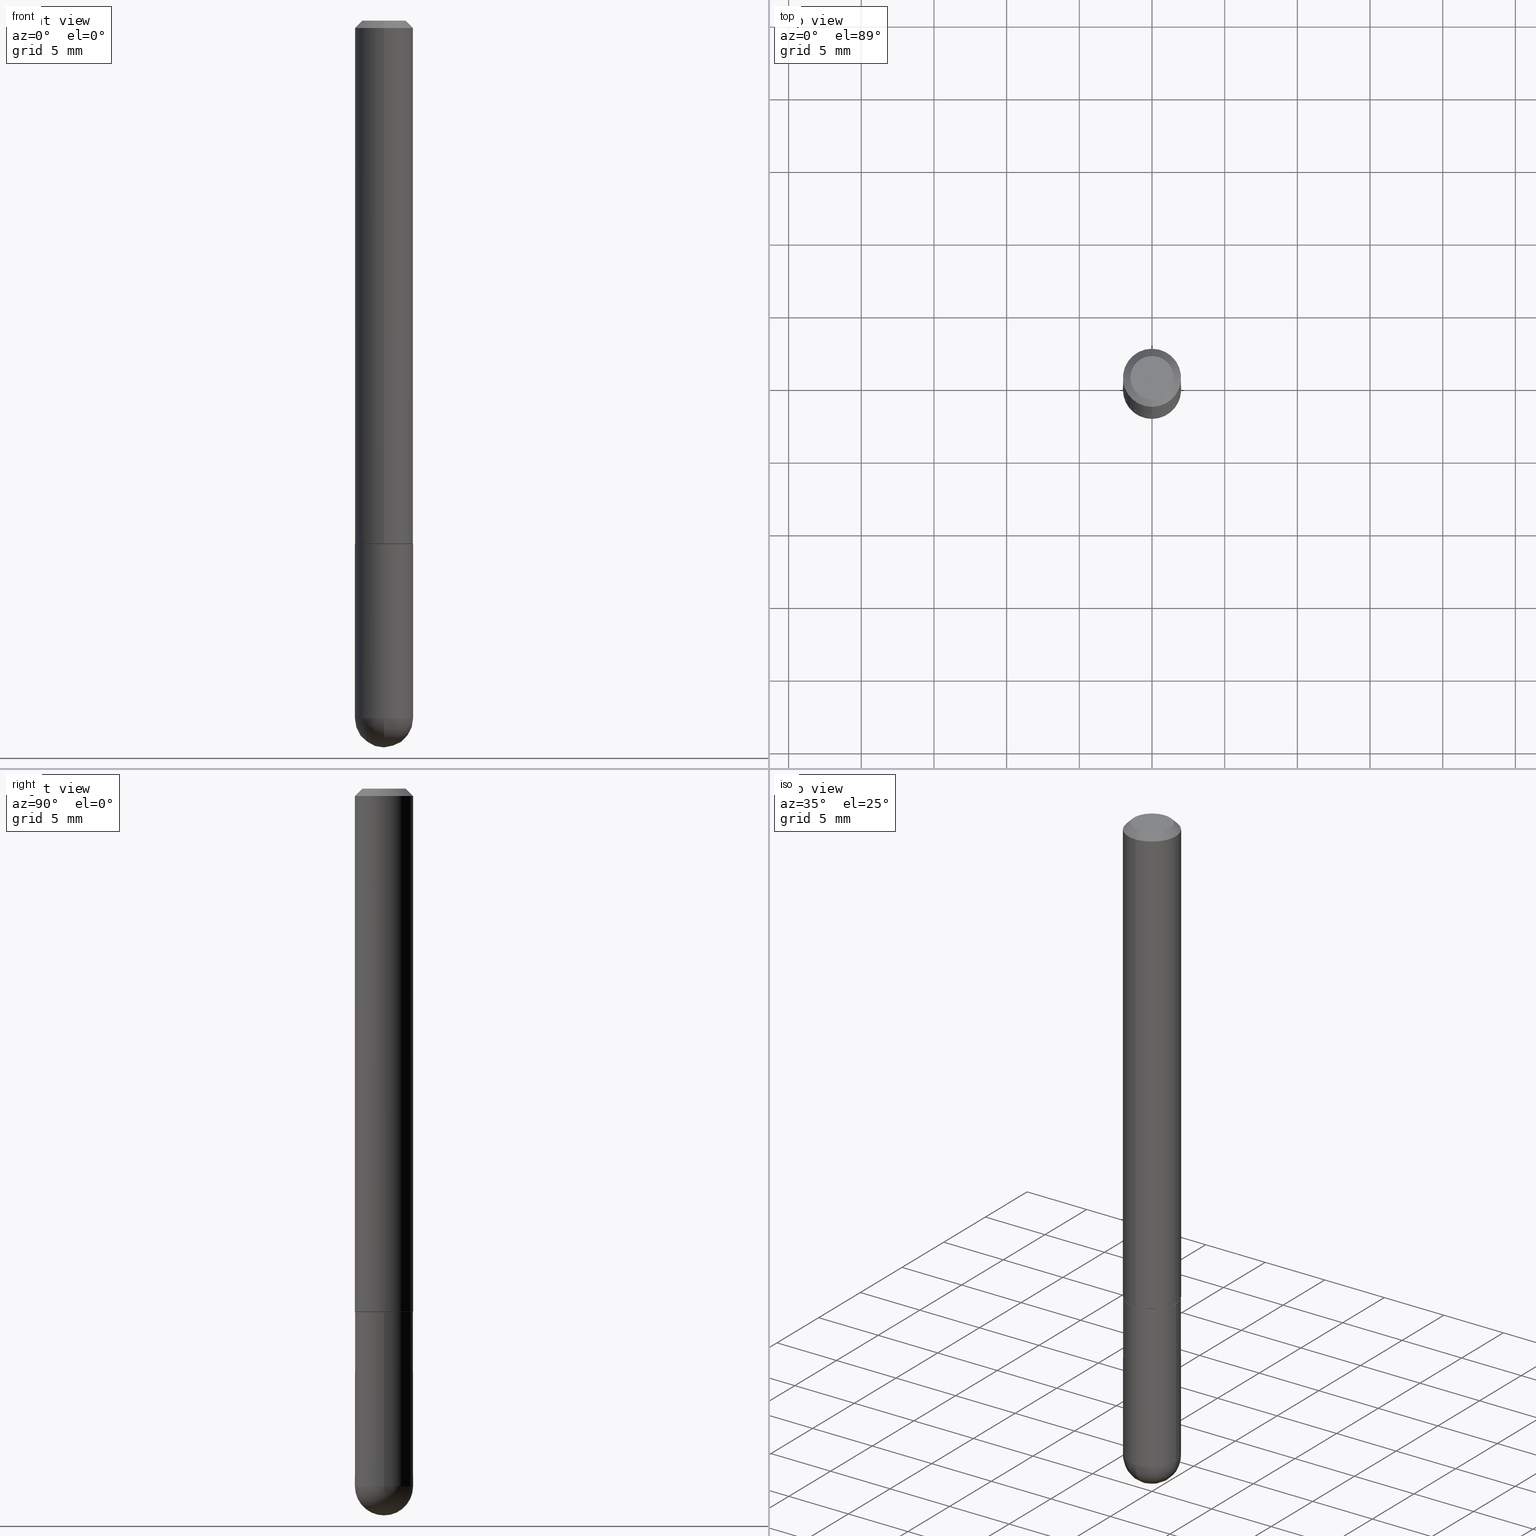
[diagram: canonical four-view strip — front | top / right | iso, engineering-drawing reading convention]
A machine part, canonical four-view strip (front | top / right | iso — engineering-drawing reading convention). The complete STEP part file that produces these views, byte-faithful:
ISO-10303-21;
HEADER;
FILE_DESCRIPTION (( 'STEP AP203' ),
    '1' );
FILE_NAME ('48741.STEP',
    '2024-04-10T12:00:30',
    ( '' ),
    ( '' ),
    'SwSTEP 2.0',
    'SolidWorks 2023',
    '' );
FILE_SCHEMA (( 'CONFIG_CONTROL_DESIGN' ));
ENDSEC;

DATA;
#1 = FACE_OUTER_BOUND ( 'NONE', #351, .T. ) ;
#2 = APPROVAL_ROLE ( '' ) ;
#3 = EDGE_CURVE ( 'NONE', #172, #384, #390, .T. ) ;
#4 = ORIENTED_EDGE ( 'NONE', *, *, #285, .T. ) ;
#5 = CARTESIAN_POINT ( 'NONE',  ( 4.621324676488362597E-29, -6.598026860078835823E-15, -1.889750000000000263 ) ) ;
#6 = VECTOR ( 'NONE', #71, 39.37007874015748143 ) ;
#7 = EDGE_LOOP ( 'NONE', ( #60, #358, #212, #327, #181 ) ) ;
#8 = PERSON_AND_ORGANIZATION_ROLE ( 'creator' ) ;
#9 = COORDINATED_UNIVERSAL_TIME_OFFSET ( 5, 0, .BEHIND. ) ;
#10 = DIRECTION ( 'NONE',  ( 6.982962677686265922E-15, 1.000000000000000000, -3.469013325287941460E-15 ) ) ;
#11 = DIRECTION ( 'NONE',  ( -6.982962677686265922E-15, -1.000000000000000000, 3.469013325287954477E-15 ) ) ;
#12 = LINE ( 'NONE', #347, #412 ) ;
#13 = CALENDAR_DATE ( 2024, 10, 4 ) ;
#14 = AXIS2_PLACEMENT_3D ( 'NONE', #50, #193, #20 ) ;
#15 = DIRECTION ( 'NONE',  ( -6.982962677686265133E-15, -1.000000000000000000, 3.513630860018345064E-15 ) ) ;
#16 = CARTESIAN_POINT ( 'NONE',  ( 3.462933611428052952E-29, -4.945821139196164307E-15, -1.416299999999999892 ) ) ;
#17 = EDGE_CURVE ( 'NONE', #59, #384, #411, .T. ) ;
#18 = LINE ( 'NONE', #344, #164 ) ;
#19 = FACE_OUTER_BOUND ( 'NONE', #171, .T. ) ;
#20 = DIRECTION ( 'NONE',  ( -6.982962677686265133E-15, -1.000000000000000000, 3.492071693282613575E-15 ) ) ;
#21 = DIRECTION ( 'NONE',  ( 2.445056563883395622E-29, -3.492071693282613575E-15, -1.000000000000000000 ) ) ;
#22 = AXIS2_PLACEMENT_3D ( 'NONE', #213, #336, #39 ) ;
#23 = CONICAL_SURFACE ( 'NONE', #209, 0.07774999999999999967, 0.7853981633975080090 ) ;
#24 = DIRECTION ( 'NONE',  ( 6.982962677686266711E-15, 1.000000000000000000, 0.000000000000000000 ) ) ;
#25 = ORIENTED_EDGE ( 'NONE', *, *, #330, .F. ) ;
#26 = CARTESIAN_POINT ( 'NONE',  ( -4.716592373467918680E-16, -0.05874999999999983707, 3.759343949076881619E-16 ) ) ;
#27 = AXIS2_PLACEMENT_3D ( 'NONE', #353, #240, #268 ) ;
#28 = CC_DESIGN_SECURITY_CLASSIFICATION ( #210, ( #340 ) ) ;
#29 = VERTEX_POINT ( 'NONE', #366 ) ;
#30 = APPROVAL ( #348, 'UNSPECIFIED' ) ;
#31 = ORIENTED_EDGE ( 'NONE', *, *, #3, .F. ) ;
#32 = VERTEX_POINT ( 'NONE', #278 ) ;
#33 = DIRECTION ( 'NONE',  ( 0.000000000000000000, 0.000000000000000000, 1.000000000000000000 ) ) ;
#34 = EDGE_CURVE ( 'NONE', #297, #45, #339, .T. ) ;
#35 = DIRECTION ( 'NONE',  ( 1.000000000000000000, -6.982962677686261977E-15, 0.000000000000000000 ) ) ;
#36 =( GEOMETRIC_REPRESENTATION_CONTEXT ( 3 ) GLOBAL_UNCERTAINTY_ASSIGNED_CONTEXT ( ( #323 ) ) GLOBAL_UNIT_ASSIGNED_CONTEXT ( ( #205, #307, #304 ) ) REPRESENTATION_CONTEXT ( 'NONE', 'WORKASPACE' ) );
#37 = APPROVAL_STATUS ( 'not_yet_approved' ) ;
#38 = ORIENTED_EDGE ( 'NONE', *, *, #248, .F. ) ;
#39 = DIRECTION ( 'NONE',  ( -6.982962677686265922E-15, -1.000000000000000000, 3.469013325287954477E-15 ) ) ;
#40 = APPLICATION_CONTEXT ( 'configuration controlled 3d designs of mechanical parts and assemblies' ) ;
#41 = ORIENTED_EDGE ( 'NONE', *, *, #69, .T. ) ;
#42 = VECTOR ( 'NONE', #275, 39.37007874015748143 ) ;
#43 = AXIS2_PLACEMENT_3D ( 'NONE', #128, #123, #51 ) ;
#44 = COORDINATED_UNIVERSAL_TIME_OFFSET ( 5, 0, .BEHIND. ) ;
#45 = VERTEX_POINT ( 'NONE', #177 ) ;
#46 = DIRECTION ( 'NONE',  ( 6.982962677686265922E-15, 1.000000000000000000, -3.469013325287941460E-15 ) ) ;
#47 = DIRECTION ( 'NONE',  ( 1.000000000000000000, -6.982962677686261977E-15, 0.000000000000000000 ) ) ;
#48 = LINE ( 'NONE', #189, #156 ) ;
#49 = DIRECTION ( 'NONE',  ( -2.445468806185136877E-29, 3.491481338843145188E-15, 1.000000000000000000 ) ) ;
#50 = CARTESIAN_POINT ( 'NONE',  ( 0.000000000000000000, 0.000000000000000000, 0.000000000000000000 ) ) ;
#51 = DIRECTION ( 'NONE',  ( 6.982962677686265922E-15, 1.000000000000000000, -3.492071693282613969E-15 ) ) ;
#52 = FACE_OUTER_BOUND ( 'NONE', #300, .T. ) ;
#53 = DIRECTION ( 'NONE',  ( -2.445056563883395622E-29, 3.492071693282613575E-15, 1.000000000000000000 ) ) ;
#54 = AXIS2_PLACEMENT_3D ( 'NONE', #255, #81, #15 ) ;
#55 = ORIENTED_EDGE ( 'NONE', *, *, #117, .T. ) ;
#56 = CARTESIAN_POINT ( 'NONE',  ( -5.429253481900725229E-16, -0.07775000000000494016, -1.417299999999999560 ) ) ;
#57 = EDGE_CURVE ( 'NONE', #151, #29, #163, .T. ) ;
#58 = AXIS2_PLACEMENT_3D ( 'NONE', #328, #130, #98 ) ;
#59 = VERTEX_POINT ( 'NONE', #68 ) ;
#60 = ORIENTED_EDGE ( 'NONE', *, *, #289, .F. ) ;
#61 = APPLICATION_PROTOCOL_DEFINITION ( 'international standard', 'config_control_design', 1994, #190 ) ;
#62 = ORIENTED_EDGE ( 'NONE', *, *, #223, .T. ) ;
#63 = PRODUCT_DEFINITION_SHAPE ( 'NONE', 'NONE',  #257 ) ;
#64 = APPROVAL_PERSON_ORGANIZATION ( #113, #363, #184 ) ;
#65 = ORIENTED_EDGE ( 'NONE', *, *, #34, .F. ) ;
#66 = VECTOR ( 'NONE', #200, 39.37007874015748143 ) ;
#67 = SHAPE_DEFINITION_REPRESENTATION ( #63, #232 ) ;
#68 = CARTESIAN_POINT ( 'NONE',  ( 5.595524044110973399E-16, 0.07874999999999522660, -1.416300000000000114 ) ) ;
#69 = EDGE_CURVE ( 'NONE', #384, #231, #216, .T. ) ;
#70 = ORIENTED_EDGE ( 'NONE', *, *, #69, .F. ) ;
#71 = DIRECTION ( 'NONE',  ( -2.445468806185136877E-29, 3.491481338843145188E-15, 1.000000000000000000 ) ) ;
#72 = CC_DESIGN_PERSON_AND_ORGANIZATION_ASSIGNMENT ( #326, #169, ( #210 ) ) ;
#73 = CARTESIAN_POINT ( 'NONE',  ( 4.621324676488362597E-29, -6.598026860078835823E-15, -1.889750000000000263 ) ) ;
#74 = CIRCLE ( 'NONE', #394, 0.05874999999999983707 ) ;
#75 = CIRCLE ( 'NONE', #236, 0.07875000000000026423 ) ;
#76 = CARTESIAN_POINT ( 'NONE',  ( -5.402642173245073966E-16, -0.07875000000000004219, -0.01999999999999974368 ) ) ;
#77 = CALENDAR_DATE ( 2024, 10, 4 ) ;
#78 = EDGE_CURVE ( 'NONE', #386, #172, #74, .T. ) ;
#79 = CARTESIAN_POINT ( 'NONE',  ( -4.175549819648685349E-45, 5.963591822157074945E-31, 1.707751829273352124E-16 ) ) ;
#80 = PERSON_AND_ORGANIZATION ( #282, #281 ) ;
#81 = DIRECTION ( 'NONE',  ( -2.445056563883395622E-29, 3.492071693282613575E-15, 1.000000000000000000 ) ) ;
#82 = AXIS2_PLACEMENT_3D ( 'NONE', #280, #220, #343 ) ;
#83 = FACE_OUTER_BOUND ( 'NONE', #356, .T. ) ;
#84 = CC_DESIGN_APPROVAL ( #30, ( #340 ) ) ;
#85 = CARTESIAN_POINT ( 'NONE',  ( 0.000000000000000000, 0.000000000000000000, 0.000000000000000000 ) ) ;
#86 = CARTESIAN_POINT ( 'NONE',  ( 3.465378667991936530E-29, -4.949313210889448724E-15, -1.417300000000000004 ) ) ;
#87 = PERSON_AND_ORGANIZATION ( #282, #281 ) ;
#88 = DIRECTION ( 'NONE',  ( -6.982962677686265133E-15, -1.000000000000000000, 3.492071693282613180E-15 ) ) ;
#89 = CARTESIAN_POINT ( 'NONE',  ( -5.595524044110351185E-16, -0.07875000000000693945, -1.889750000000000041 ) ) ;
#90 = DIRECTION ( 'NONE',  ( -2.445468806185136597E-29, 3.491481338843145583E-15, 1.000000000000000000 ) ) ;
#91 = AXIS2_PLACEMENT_3D ( 'NONE', #238, #33, #142 ) ;
#92 = EDGE_LOOP ( 'NONE', ( #38, #408, #134, #41 ) ) ;
#93 =( LENGTH_UNIT ( ) NAMED_UNIT ( * ) SI_UNIT ( $, .METRE. ) );
#94 = EDGE_CURVE ( 'NONE', #306, #312, #322, .T. ) ;
#95 = ORIENTED_EDGE ( 'NONE', *, *, #308, .T. ) ;
#96 = EDGE_CURVE ( 'NONE', #32, #306, #367, .T. ) ;
#97 = EDGE_LOOP ( 'NONE', ( #382, #206, #242, #166, #406 ) ) ;
#98 = DIRECTION ( 'NONE',  ( -7.105427357601000281E-15, -1.000000000000000000, 0.000000000000000000 ) ) ;
#99 = AXIS2_PLACEMENT_3D ( 'NONE', #115, #162, #47 ) ;
#100 = APPROVAL_PERSON_ORGANIZATION ( #80, #30, #2 ) ;
#101 = ORIENTED_EDGE ( 'NONE', *, *, #96, .F. ) ;
#102 = CARTESIAN_POINT ( 'NONE',  ( 5.595524044110793934E-16, 0.07875000000000008382, -2.750006458460061015E-16 ) ) ;
#103 = DIRECTION ( 'NONE',  ( 1.000000000000000000, -6.982962677686267499E-15, 4.876176775795935793E-29 ) ) ;
#104 = PERSON_AND_ORGANIZATION ( #282, #281 ) ;
#105 = MANIFOLD_SOLID_BREP ( 'Body-Move/Copy2[2]', #235 ) ;
#106 = ORIENTED_EDGE ( 'NONE', *, *, #78, .T. ) ;
#107 = CARTESIAN_POINT ( 'NONE',  ( -0.07874999999999997280, 5.595524044110787031E-16, -3.873661383575737091E-30 ) ) ;
#108 = MECHANICAL_CONTEXT ( 'NONE', #190, 'mechanical' ) ;
#109 = ADVANCED_FACE ( 'NONE', ( #1 ), #217, .T. ) ;
#110 = CARTESIAN_POINT ( 'NONE',  ( 3.465962939006193759E-29, -4.948476501542390442E-15, -1.417300000000000004 ) ) ;
#111 = CARTESIAN_POINT ( 'NONE',  ( 3.465378667991936530E-29, -4.949313210889448724E-15, -1.417300000000000004 ) ) ;
#112 = ORIENTED_EDGE ( 'NONE', *, *, #330, .T. ) ;
#113 = PERSON_AND_ORGANIZATION ( #282, #281 ) ;
#114 = DESIGN_CONTEXT ( 'detailed design', #40, 'design' ) ;
#115 = CARTESIAN_POINT ( 'NONE',  ( 3.465962939006193759E-29, -4.948476501542390442E-15, -1.417300000000000004 ) ) ;
#116 = AXIS2_PLACEMENT_3D ( 'NONE', #377, #90, #103 ) ;
#117 = EDGE_CURVE ( 'NONE', #45, #297, #349, .T. ) ;
#118 = CYLINDRICAL_SURFACE ( 'NONE', #331, 0.07874999999999997280 ) ;
#119 = PLANE ( 'NONE',  #43 ) ;
#120 = DIRECTION ( 'NONE',  ( -2.445468806185136597E-29, 3.491481338843145583E-15, 1.000000000000000000 ) ) ;
#121 = SPHERICAL_SURFACE ( 'NONE', #122, 0.07875000000000026423 ) ;
#122 = AXIS2_PLACEMENT_3D ( 'NONE', #318, #342, #46 ) ;
#123 = DIRECTION ( 'NONE',  ( 2.445056563883394781E-29, -3.492071693282613969E-15, -1.000000000000000000 ) ) ;
#124 = LOCAL_TIME ( 8, 0, 30.00000000000000000, #191 ) ;
#125 = CALENDAR_DATE ( 2024, 10, 4 ) ;
#126 = DIRECTION ( 'NONE',  ( -2.445468806185136597E-29, 3.491481338843145583E-15, 1.000000000000000000 ) ) ;
#127 = ORIENTED_EDGE ( 'NONE', *, *, #17, .T. ) ;
#128 = CARTESIAN_POINT ( 'NONE',  ( 4.102490573140669465E-16, 0.05874999999999983707, -1.197716205166853802E-16 ) ) ;
#129 = ORIENTED_EDGE ( 'NONE', *, *, #78, .F. ) ;
#130 = DIRECTION ( 'NONE',  ( -1.000000000000000000, 7.105427357601001070E-15, -4.926315508542082329E-29 ) ) ;
#131 = DATE_AND_TIME ( #125, #124 ) ;
#132 = LOCAL_TIME ( 8, 0, 30.00000000000000000, #133 ) ;
#133 = COORDINATED_UNIVERSAL_TIME_OFFSET ( 5, 0, .BEHIND. ) ;
#134 = ORIENTED_EDGE ( 'NONE', *, *, #3, .T. ) ;
#135 = PLANE ( 'NONE',  #27 ) ;
#136 = APPROVAL_DATE_TIME ( #355, #30 ) ;
#137 = PERSON_AND_ORGANIZATION_ROLE ( 'design_owner' ) ;
#138 = AXIS2_PLACEMENT_3D ( 'NONE', #5, #175, #303 ) ;
#139 = CIRCLE ( 'NONE', #99, 0.07875000000000000056 ) ;
#140 = ORIENTED_EDGE ( 'NONE', *, *, #329, .T. ) ;
#141 = VERTEX_POINT ( 'NONE', #373 ) ;
#142 = DIRECTION ( 'NONE',  ( 1.000000000000000000, 0.000000000000000000, 0.000000000000000000 ) ) ;
#143 = EDGE_CURVE ( 'NONE', #141, #32, #203, .T. ) ;
#144 = ORIENTED_EDGE ( 'NONE', *, *, #94, .F. ) ;
#145 = PERSON_AND_ORGANIZATION_ROLE ( 'creator' ) ;
#146 = ADVANCED_FACE ( 'NONE', ( #375 ), #153, .T. ) ;
#147 = EDGE_CURVE ( 'NONE', #312, #141, #243, .T. ) ;
#148 = AXIS2_PLACEMENT_3D ( 'NONE', #16, #224, #261 ) ;
#149 = DIRECTION ( 'NONE',  ( 1.000000000000000000, -6.982962677686264344E-15, 0.000000000000000000 ) ) ;
#150 = LOCAL_TIME ( 8, 0, 30.00000000000000000, #44 ) ;
#151 = VERTEX_POINT ( 'NONE', #393 ) ;
#152 = PERSON_AND_ORGANIZATION ( #282, #281 ) ;
#153 = CYLINDRICAL_SURFACE ( 'NONE', #290, 0.07875000000000008382 ) ;
#154 = LINE ( 'NONE', #107, #6 ) ;
#155 = DIRECTION ( 'NONE',  ( 1.000000000000000000, -6.982962677686264344E-15, 0.000000000000000000 ) ) ;
#156 = VECTOR ( 'NONE', #317, 39.37007874015748143 ) ;
#157 = DATE_AND_TIME ( #13, #218 ) ;
#158 = FACE_OUTER_BOUND ( 'NONE', #294, .T. ) ;
#159 = CARTESIAN_POINT ( 'NONE',  ( 3.462933611428052952E-29, -4.945821139196164307E-15, -1.416299999999999892 ) ) ;
#160 = FACE_OUTER_BOUND ( 'NONE', #92, .T. ) ;
#161 = CC_DESIGN_PERSON_AND_ORGANIZATION_ASSIGNMENT ( #104, #137, ( #253 ) ) ;
#162 = DIRECTION ( 'NONE',  ( -2.445468806185136597E-29, 3.491481338843145583E-15, 1.000000000000000000 ) ) ;
#163 = CIRCLE ( 'NONE', #383, 0.07875000000000000056 ) ;
#164 = VECTOR ( 'NONE', #288, 39.37007874015748143 ) ;
#165 = CARTESIAN_POINT ( 'NONE',  ( -5.499083108677601149E-16, -0.07875000000000513534, -1.416299999999999670 ) ) ;
#166 = ORIENTED_EDGE ( 'NONE', *, *, #234, .F. ) ;
#167 = EDGE_CURVE ( 'NONE', #45, #59, #12, .T. ) ;
#168 = FACE_OUTER_BOUND ( 'NONE', #354, .T. ) ;
#169 = PERSON_AND_ORGANIZATION_ROLE ( 'classification_officer' ) ;
#170 = VECTOR ( 'NONE', #49, 39.37007874015748143 ) ;
#171 = EDGE_LOOP ( 'NONE', ( #202, #352, #199, #207 ) ) ;
#172 = VERTEX_POINT ( 'NONE', #396 ) ;
#173 = APPROVAL_DATE_TIME ( #362, #251 ) ;
#174 = AXIS2_PLACEMENT_3D ( 'NONE', #185, #287, #402 ) ;
#175 = DIRECTION ( 'NONE',  ( -2.445468806185136597E-29, 3.491481338843145583E-15, 1.000000000000000000 ) ) ;
#176 = PERSON_AND_ORGANIZATION ( #282, #281 ) ;
#177 = CARTESIAN_POINT ( 'NONE',  ( 5.559996907323135005E-16, 0.07774999999999504530, -1.417300000000000226 ) ) ;
#178 = EDGE_CURVE ( 'NONE', #172, #386, #385, .T. ) ;
#179 = DIRECTION ( 'NONE',  ( -2.445056563883395622E-29, 3.492071693282613575E-15, 1.000000000000000000 ) ) ;
#180 = AXIS2_PLACEMENT_3D ( 'NONE', #313, #126, #286 ) ;
#181 = ORIENTED_EDGE ( 'NONE', *, *, #57, .F. ) ;
#182 = ORIENTED_EDGE ( 'NONE', *, *, #308, .F. ) ;
#183 = DIRECTION ( 'NONE',  ( -2.445056563883395622E-29, 3.492071693282613575E-15, 1.000000000000000000 ) ) ;
#184 = APPROVAL_ROLE ( '' ) ;
#185 = CARTESIAN_POINT ( 'NONE',  ( 4.890113127766794678E-31, -6.984143386565232622E-17, -0.02000000000000001776 ) ) ;
#186 = DATE_AND_TIME ( #77, #150 ) ;
#187 = DIRECTION ( 'NONE',  ( -2.445056563883395622E-29, 3.492071693282613575E-15, 1.000000000000000000 ) ) ;
#188 = AXIS2_PLACEMENT_3D ( 'NONE', #369, #256, #155 ) ;
#189 = CARTESIAN_POINT ( 'NONE',  ( -5.499083108677939373E-16, -0.07875000000000008382, 2.750006458460061015E-16 ) ) ;
#190 = APPLICATION_CONTEXT ( 'configuration controlled 3d designs of mechanical parts and assemblies' ) ;
#191 = COORDINATED_UNIVERSAL_TIME_OFFSET ( 5, 0, .BEHIND. ) ;
#192 = CC_DESIGN_PERSON_AND_ORGANIZATION_ASSIGNMENT ( #249, #145, ( #257 ) ) ;
#193 = DIRECTION ( 'NONE',  ( -2.445056563883395622E-29, 3.492071693282613575E-15, 1.000000000000000000 ) ) ;
#194 = DIRECTION ( 'NONE',  ( -2.445056563883395622E-29, 3.492071693282613575E-15, 1.000000000000000000 ) ) ;
#195 = AXIS2_PLACEMENT_3D ( 'NONE', #73, #277, #149 ) ;
#196 = AXIS2_PLACEMENT_3D ( 'NONE', #262, #183, #11 ) ;
#197 = DIMENSIONAL_EXPONENTS ( 1.000000000000000000, 0.000000000000000000, 0.000000000000000000, 0.000000000000000000, 0.000000000000000000, 0.000000000000000000, 0.000000000000000000 ) ;
#198 = PERSON_AND_ORGANIZATION_ROLE ( 'design_supplier' ) ;
#199 = ORIENTED_EDGE ( 'NONE', *, *, #337, .F. ) ;
#200 = DIRECTION ( 'NONE',  ( -4.937700262164843076E-15, -0.7071067811865873187, 0.7071067811865077157 ) ) ;
#201 = SECURITY_CLASSIFICATION_LEVEL ( 'unclassified' ) ;
#202 = ORIENTED_EDGE ( 'NONE', *, *, #34, .T. ) ;
#203 = CIRCLE ( 'NONE', #188, 0.07874999999999997280 ) ;
#204 = ORIENTED_EDGE ( 'NONE', *, *, #389, .T. ) ;
#205 =( CONVERSION_BASED_UNIT ( 'INCH', #381 ) LENGTH_UNIT ( ) NAMED_UNIT ( #197 ) );
#206 = ORIENTED_EDGE ( 'NONE', *, *, #289, .T. ) ;
#207 = ORIENTED_EDGE ( 'NONE', *, *, #389, .F. ) ;
#208 = AXIS2_PLACEMENT_3D ( 'NONE', #239, #274, #391 ) ;
#209 = AXIS2_PLACEMENT_3D ( 'NONE', #86, #53, #400 ) ;
#210 = SECURITY_CLASSIFICATION ( '', '', #201 ) ;
#211 = ADVANCED_FACE ( 'NONE', ( #316 ), #118, .T. ) ;
#212 = ORIENTED_EDGE ( 'NONE', *, *, #94, .T. ) ;
#213 = CARTESIAN_POINT ( 'NONE',  ( 4.890113127766794678E-31, -6.984143386565232622E-17, -0.02000000000000001776 ) ) ;
#214 = ORIENTED_EDGE ( 'NONE', *, *, #337, .T. ) ;
#215 = ADVANCED_FACE ( 'NONE', ( #52 ), #371, .F. ) ;
#216 = CIRCLE ( 'NONE', #22, 0.07874999999999997280 ) ;
#217 = SPHERICAL_SURFACE ( 'NONE', #301, 0.07875000000000026423 ) ;
#218 = LOCAL_TIME ( 8, 0, 30.00000000000000000, #9 ) ;
#219 = FACE_OUTER_BOUND ( 'NONE', #237, .T. ) ;
#220 = DIRECTION ( 'NONE',  ( 2.438088387897960049E-29, -3.491481338843145188E-15, -1.000000000000000000 ) ) ;
#221 = CARTESIAN_POINT ( 'NONE',  ( 0.07874999999999997280, -5.499083108677933457E-16, 3.839989210939298316E-30 ) ) ;
#222 = CONICAL_SURFACE ( 'NONE', #54, 0.07774999999999999967, 0.7853981633975080090 ) ;
#223 = EDGE_CURVE ( 'NONE', #29, #151, #139, .T. ) ;
#224 = DIRECTION ( 'NONE',  ( -2.445056563883395622E-29, 3.492071693282613575E-15, 1.000000000000000000 ) ) ;
#225 = DIRECTION ( 'NONE',  ( 1.000000000000000000, -6.982962677686267499E-15, 4.876176775795935793E-29 ) ) ;
#226 = DIRECTION ( 'NONE',  ( -2.445056563883395622E-29, 3.492071693282613575E-15, 1.000000000000000000 ) ) ;
#227 = VERTEX_POINT ( 'NONE', #260 ) ;
#228 = VECTOR ( 'NONE', #334, 39.37007874015748143 ) ;
#229 = APPROVAL_PERSON_ORGANIZATION ( #87, #251, #305 ) ;
#230 = ADVANCED_FACE ( 'NONE', ( #158 ), #222, .T. ) ;
#231 = VERTEX_POINT ( 'NONE', #76 ) ;
#232 = ADVANCED_BREP_SHAPE_REPRESENTATION ( '48741', ( #246, #105, #91 ), #36 ) ;
#233 = ORIENTED_EDGE ( 'NONE', *, *, #57, .T. ) ;
#234 = EDGE_CURVE ( 'NONE', #312, #29, #345, .T. ) ;
#235 = CLOSED_SHELL ( 'NONE', ( #296, #146, #292, #273, #279, #230, #378, #319 ) ) ;
#236 = AXIS2_PLACEMENT_3D ( 'NONE', #325, #404, #24 ) ;
#237 = EDGE_LOOP ( 'NONE', ( #263, #95, #332, #144 ) ) ;
#238 = CARTESIAN_POINT ( 'NONE',  ( 0.000000000000000000, 0.000000000000000000, 0.000000000000000000 ) ) ;
#239 = CARTESIAN_POINT ( 'NONE',  ( 3.465378667991936530E-29, -4.949313210889448724E-15, -1.417300000000000004 ) ) ;
#240 = DIRECTION ( 'NONE',  ( -2.445056563883394781E-29, 3.492071693282613969E-15, 1.000000000000000000 ) ) ;
#241 = APPLICATION_PROTOCOL_DEFINITION ( 'international standard', 'config_control_design', 1994, #40 ) ;
#242 = ORIENTED_EDGE ( 'NONE', *, *, #223, .F. ) ;
#243 = CIRCLE ( 'NONE', #180, 0.07874999999999997280 ) ;
#244 = COORDINATED_UNIVERSAL_TIME_OFFSET ( 5, 0, .BEHIND. ) ;
#245 = ORIENTED_EDGE ( 'NONE', *, *, #143, .F. ) ;
#246 = MANIFOLD_SOLID_BREP ( 'Body-Move/Copy2[1]', #252 ) ;
#247 = CARTESIAN_POINT ( 'NONE',  ( 4.290204898574475789E-29, -7.072209228218884542E-15, -1.889750000000000041 ) ) ;
#248 = EDGE_CURVE ( 'NONE', #386, #231, #18, .T. ) ;
#249 = PERSON_AND_ORGANIZATION ( #282, #281 ) ;
#250 = ORIENTED_EDGE ( 'NONE', *, *, #17, .F. ) ;
#251 = APPROVAL ( #37, 'UNSPECIFIED' ) ;
#252 = CLOSED_SHELL ( 'NONE', ( #357, #109, #266, #215, #211 ) ) ;
#253 = PRODUCT ( '48741', '48741', '', ( #108 ) ) ;
#254 = CIRCLE ( 'NONE', #302, 0.07875000000000018097 ) ;
#255 = CARTESIAN_POINT ( 'NONE',  ( 3.465378667991936530E-29, -4.949313210889448724E-15, -1.417300000000000004 ) ) ;
#256 = DIRECTION ( 'NONE',  ( -2.445468806185136597E-29, 3.491481338843145583E-15, 1.000000000000000000 ) ) ;
#257 = PRODUCT_DEFINITION ( 'UNKNOWN', '', #340, #114 ) ;
#258 = CARTESIAN_POINT ( 'NONE',  ( 0.000000000000000000, 0.000000000000000000, 0.000000000000000000 ) ) ;
#259 = CC_DESIGN_DATE_AND_TIME_ASSIGNMENT ( #131, #374, ( #210 ) ) ;
#260 = CARTESIAN_POINT ( 'NONE',  ( 4.486152784325199885E-29, -7.342341336881140459E-15, -1.968500000000000361 ) ) ;
#261 = DIRECTION ( 'NONE',  ( -6.982962677686265922E-15, -1.000000000000000000, 3.469013325287945405E-15 ) ) ;
#262 = CARTESIAN_POINT ( 'NONE',  ( 4.890113127766794678E-31, -6.984143386565232622E-17, -0.02000000000000001776 ) ) ;
#263 = ORIENTED_EDGE ( 'NONE', *, *, #399, .F. ) ;
#264 = CYLINDRICAL_SURFACE ( 'NONE', #116, 0.07874999999999997280 ) ;
#265 = CALENDAR_DATE ( 2024, 10, 4 ) ;
#266 = ADVANCED_FACE ( 'NONE', ( #219 ), #121, .T. ) ;
#267 = ORIENTED_EDGE ( 'NONE', *, *, #167, .F. ) ;
#268 = DIRECTION ( 'NONE',  ( -6.982962677686265922E-15, -1.000000000000000000, 3.492071693282613969E-15 ) ) ;
#269 = ORIENTED_EDGE ( 'NONE', *, *, #178, .T. ) ;
#270 = CIRCLE ( 'NONE', #148, 0.07875000000000018097 ) ;
#271 = LOCAL_TIME ( 8, 0, 30.00000000000000000, #244 ) ;
#272 = ORIENTED_EDGE ( 'NONE', *, *, #329, .F. ) ;
#273 = ADVANCED_FACE ( 'NONE', ( #160 ), #401, .T. ) ;
#274 = DIRECTION ( 'NONE',  ( -2.445056563883395622E-29, 3.492071693282613575E-15, 1.000000000000000000 ) ) ;
#275 = DIRECTION ( 'NONE',  ( -2.445056563883395342E-29, 3.492071693282613969E-15, 1.000000000000000000 ) ) ;
#276 = CIRCLE ( 'NONE', #58, 0.07875000000000026423 ) ;
#277 = DIRECTION ( 'NONE',  ( -2.445468806185136597E-29, 3.491481338843145583E-15, 1.000000000000000000 ) ) ;
#278 = CARTESIAN_POINT ( 'NONE',  ( -0.07874999999999997280, -5.213699276399534331E-15, -1.889750000000000263 ) ) ;
#279 = ADVANCED_FACE ( 'NONE', ( #314 ), #398, .T. ) ;
#280 = CARTESIAN_POINT ( 'NONE',  ( 5.499083108678280556E-16, 0.07874999999999504618, -1.417300000000000226 ) ) ;
#281 = ORGANIZATION ( 'UNSPECIFIED', 'UNSPECIFIED', '' ) ;
#282 = PERSON ( 'UNSPECIFIED', 'UNSPECIFIED', 'UNSPECIFIED', ('UNSPECIFIED'), ('UNSPECIFIED'), ('UNSPECIFIED') ) ;
#283 = DIRECTION ( 'NONE',  ( -2.445056563883395622E-29, 3.492071693282613575E-15, 1.000000000000000000 ) ) ;
#284 = FACE_OUTER_BOUND ( 'NONE', #359, .T. ) ;
#285 = EDGE_CURVE ( 'NONE', #231, #384, #350, .T. ) ;
#286 = DIRECTION ( 'NONE',  ( 1.000000000000000000, -6.982962677686264344E-15, 0.000000000000000000 ) ) ;
#287 = DIRECTION ( 'NONE',  ( 2.445056563883395622E-29, -3.492071693282613575E-15, -1.000000000000000000 ) ) ;
#288 = DIRECTION ( 'NONE',  ( -4.851104656540958753E-15, -0.7071067811865492381, -0.7071067811865457964 ) ) ;
#289 = EDGE_CURVE ( 'NONE', #32, #151, #154, .T. ) ;
#290 = AXIS2_PLACEMENT_3D ( 'NONE', #258, #283, #397 ) ;
#291 = DIRECTION ( 'NONE',  ( -6.982962677686265922E-15, -1.000000000000000000, 3.469013325287945405E-15 ) ) ;
#292 = ADVANCED_FACE ( 'NONE', ( #83 ), #395, .T. ) ;
#293 = CARTESIAN_POINT ( 'NONE',  ( -5.429253481900725229E-16, -0.07775000000000494016, -1.417299999999999560 ) ) ;
#294 = EDGE_LOOP ( 'NONE', ( #267, #55, #204, #25 ) ) ;
#295 = LINE ( 'NONE', #56, #66 ) ;
#296 = ADVANCED_FACE ( 'NONE', ( #19 ), #23, .T. ) ;
#297 = VERTEX_POINT ( 'NONE', #293 ) ;
#298 = AXIS2_PLACEMENT_3D ( 'NONE', #321, #21, #315 ) ;
#299 = VERTEX_POINT ( 'NONE', #165 ) ;
#300 = EDGE_LOOP ( 'NONE', ( #62, #233 ) ) ;
#301 = AXIS2_PLACEMENT_3D ( 'NONE', #247, #341, #10 ) ;
#302 = AXIS2_PLACEMENT_3D ( 'NONE', #159, #194, #291 ) ;
#303 = DIRECTION ( 'NONE',  ( 1.000000000000000000, -6.982962677686264344E-15, 0.000000000000000000 ) ) ;
#304 =( NAMED_UNIT ( * ) SI_UNIT ( $, .STERADIAN. ) SOLID_ANGLE_UNIT ( ) );
#305 = APPROVAL_ROLE ( '' ) ;
#306 = VERTEX_POINT ( 'NONE', #89 ) ;
#307 =( NAMED_UNIT ( * ) PLANE_ANGLE_UNIT ( ) SI_UNIT ( $, .RADIAN. ) );
#308 = EDGE_CURVE ( 'NONE', #227, #141, #75, .T. ) ;
#309 = DIRECTION ( 'NONE',  ( -6.982962677686265133E-15, -1.000000000000000000, 3.492071693282613180E-15 ) ) ;
#310 = APPROVAL_DATE_TIME ( #186, #363 ) ;
#311 = CC_DESIGN_PERSON_AND_ORGANIZATION_ASSIGNMENT ( #176, #8, ( #340 ) ) ;
#312 = VERTEX_POINT ( 'NONE', #346 ) ;
#313 = CARTESIAN_POINT ( 'NONE',  ( 4.621324676488362597E-29, -6.598026860078835823E-15, -1.889750000000000263 ) ) ;
#314 = FACE_OUTER_BOUND ( 'NONE', #380, .T. ) ;
#315 = DIRECTION ( 'NONE',  ( 6.982962677686265922E-15, 1.000000000000000000, -3.469013325287954477E-15 ) ) ;
#316 = FACE_OUTER_BOUND ( 'NONE', #7, .T. ) ;
#317 = DIRECTION ( 'NONE',  ( -2.445056563883395342E-29, 3.492071693282613969E-15, 1.000000000000000000 ) ) ;
#318 = CARTESIAN_POINT ( 'NONE',  ( 4.290204898574475789E-29, -7.072209228218884542E-15, -1.889750000000000041 ) ) ;
#319 = ADVANCED_FACE ( 'NONE', ( #284 ), #119, .F. ) ;
#320 = DIRECTION ( 'NONE',  ( 5.024295867788362157E-15, 0.7071067811865922037, 0.7071067811865028307 ) ) ;
#321 = CARTESIAN_POINT ( 'NONE',  ( 4.890113127766794678E-31, -6.984143386565232622E-17, -0.02000000000000001776 ) ) ;
#322 = CIRCLE ( 'NONE', #138, 0.07874999999999997280 ) ;
#323 = UNCERTAINTY_MEASURE_WITH_UNIT (LENGTH_MEASURE( 1.000000000000000082E-05 ), #205, 'distance_accuracy_value', 'NONE');
#324 = CC_DESIGN_PERSON_AND_ORGANIZATION_ASSIGNMENT ( #152, #198, ( #340 ) ) ;
#325 = CARTESIAN_POINT ( 'NONE',  ( 4.290204898574475789E-29, -7.072209228218884542E-15, -1.889750000000000041 ) ) ;
#326 = PERSON_AND_ORGANIZATION ( #282, #281 ) ;
#327 = ORIENTED_EDGE ( 'NONE', *, *, #234, .T. ) ;
#328 = CARTESIAN_POINT ( 'NONE',  ( 4.290204898574475789E-29, -7.072209228218884542E-15, -1.889750000000000041 ) ) ;
#329 = EDGE_CURVE ( 'NONE', #299, #231, #48, .T. ) ;
#330 = EDGE_CURVE ( 'NONE', #59, #299, #270, .T. ) ;
#331 = AXIS2_PLACEMENT_3D ( 'NONE', #85, #120, #225 ) ;
#332 = ORIENTED_EDGE ( 'NONE', *, *, #147, .F. ) ;
#333 = DIRECTION ( 'NONE',  ( -2.445468806185136597E-29, 3.491481338843145583E-15, 1.000000000000000000 ) ) ;
#334 = DIRECTION ( 'NONE',  ( 4.937700262164542520E-15, 0.7071067811865443531, -0.7071067811865506814 ) ) ;
#335 = CALENDAR_DATE ( 2024, 10, 4 ) ;
#336 = DIRECTION ( 'NONE',  ( -2.445056563883395622E-29, 3.492071693282613575E-15, 1.000000000000000000 ) ) ;
#337 = EDGE_CURVE ( 'NONE', #299, #59, #254, .T. ) ;
#338 = ORIENTED_EDGE ( 'NONE', *, *, #248, .T. ) ;
#339 = CIRCLE ( 'NONE', #208, 0.07774999999999999967 ) ;
#340 = PRODUCT_DEFINITION_FORMATION_WITH_SPECIFIED_SOURCE ( 'ANY', '', #253, .NOT_KNOWN. ) ;
#341 = DIRECTION ( 'NONE',  ( -1.000000000000000000, 6.982962677686265922E-15, -4.883557194083112340E-29 ) ) ;
#342 = DIRECTION ( 'NONE',  ( -1.000000000000000000, 6.982962677686265922E-15, -4.883557194083112340E-29 ) ) ;
#343 = DIRECTION ( 'NONE',  ( -1.000000000000000000, 6.982962677686265922E-15, -4.876176775795935793E-29 ) ) ;
#344 = CARTESIAN_POINT ( 'NONE',  ( -5.402642173245073966E-16, -0.07875000000000004219, -0.01999999999999974368 ) ) ;
#345 = LINE ( 'NONE', #221, #170 ) ;
#346 = CARTESIAN_POINT ( 'NONE',  ( 0.07874999999999997280, -6.323159991678405690E-15, -1.889750000000000263 ) ) ;
#347 = CARTESIAN_POINT ( 'NONE',  ( 5.524469770535124048E-16, 0.07774999999999504530, -1.417300000000000226 ) ) ;
#348 = APPROVAL_STATUS ( 'not_yet_approved' ) ;
#349 = CIRCLE ( 'NONE', #360, 0.07774999999999999967 ) ;
#350 = CIRCLE ( 'NONE', #196, 0.07874999999999997280 ) ;
#351 = EDGE_LOOP ( 'NONE', ( #182, #376, #101, #245 ) ) ;
#352 = ORIENTED_EDGE ( 'NONE', *, *, #167, .T. ) ;
#353 = CARTESIAN_POINT ( 'NONE',  ( 3.465378667991936530E-29, -4.949313210889448724E-15, -1.417300000000000004 ) ) ;
#354 = EDGE_LOOP ( 'NONE', ( #65, #410 ) ) ;
#355 = DATE_AND_TIME ( #265, #132 ) ;
#356 = EDGE_LOOP ( 'NONE', ( #129, #338, #4, #31 ) ) ;
#357 = ADVANCED_FACE ( 'NONE', ( #403 ), #264, .T. ) ;
#358 = ORIENTED_EDGE ( 'NONE', *, *, #96, .T. ) ;
#359 = EDGE_LOOP ( 'NONE', ( #269, #106 ) ) ;
#360 = AXIS2_PLACEMENT_3D ( 'NONE', #111, #187, #368 ) ;
#361 = CC_DESIGN_APPROVAL ( #363, ( #257 ) ) ;
#362 = DATE_AND_TIME ( #335, #271 ) ;
#363 = APPROVAL ( #392, 'UNSPECIFIED' ) ;
#364 = EDGE_LOOP ( 'NONE', ( #214, #127, #405, #272 ) ) ;
#365 = CARTESIAN_POINT ( 'NONE',  ( -4.175549819648685349E-45, 5.963591822157074945E-31, 1.707751829273352124E-16 ) ) ;
#366 = CARTESIAN_POINT ( 'NONE',  ( 0.07875000000000000056, -5.498384812410182999E-15, -1.417300000000000004 ) ) ;
#367 = CIRCLE ( 'NONE', #195, 0.07874999999999997280 ) ;
#368 = DIRECTION ( 'NONE',  ( -6.982962677686265133E-15, -1.000000000000000000, 3.513630860018345064E-15 ) ) ;
#369 = CARTESIAN_POINT ( 'NONE',  ( 4.621324676488362597E-29, -6.598026860078835823E-15, -1.889750000000000263 ) ) ;
#370 = DATE_TIME_ROLE ( 'creation_date' ) ;
#371 = PLANE ( 'NONE',  #82 ) ;
#372 = CC_DESIGN_APPROVAL ( #251, ( #210 ) ) ;
#373 = CARTESIAN_POINT ( 'NONE',  ( 5.499083108678389024E-16, 0.07874999999999328371, -1.889750000000000485 ) ) ;
#374 = DATE_TIME_ROLE ( 'classification_date' ) ;
#375 = FACE_OUTER_BOUND ( 'NONE', #364, .T. ) ;
#376 = ORIENTED_EDGE ( 'NONE', *, *, #399, .T. ) ;
#377 = CARTESIAN_POINT ( 'NONE',  ( 0.000000000000000000, 0.000000000000000000, 0.000000000000000000 ) ) ;
#378 = ADVANCED_FACE ( 'NONE', ( #168 ), #135, .F. ) ;
#379 = AXIS2_PLACEMENT_3D ( 'NONE', #79, #226, #88 ) ;
#380 = EDGE_LOOP ( 'NONE', ( #250, #112, #140, #70 ) ) ;
#381 = LENGTH_MEASURE_WITH_UNIT ( LENGTH_MEASURE( 0.02539999999999999897 ), #93 );
#382 = ORIENTED_EDGE ( 'NONE', *, *, #143, .T. ) ;
#383 = AXIS2_PLACEMENT_3D ( 'NONE', #110, #333, #35 ) ;
#384 = VERTEX_POINT ( 'NONE', #407 ) ;
#385 = CIRCLE ( 'NONE', #379, 0.05874999999999983707 ) ;
#386 = VERTEX_POINT ( 'NONE', #26 ) ;
#387 = CARTESIAN_POINT ( 'NONE',  ( 5.499083108677937401E-16, 0.07874999999999991729, -0.02000000000000029185 ) ) ;
#388 = CC_DESIGN_DATE_AND_TIME_ASSIGNMENT ( #157, #370, ( #257 ) ) ;
#389 = EDGE_CURVE ( 'NONE', #297, #299, #295, .T. ) ;
#390 = LINE ( 'NONE', #387, #228 ) ;
#391 = DIRECTION ( 'NONE',  ( -6.982962677686265133E-15, -1.000000000000000000, 3.513630860018345064E-15 ) ) ;
#392 = APPROVAL_STATUS ( 'not_yet_approved' ) ;
#393 = CARTESIAN_POINT ( 'NONE',  ( -0.07875000000000000056, -5.213699276399534331E-15, -1.417300000000000004 ) ) ;
#394 = AXIS2_PLACEMENT_3D ( 'NONE', #365, #179, #309 ) ;
#395 = CONICAL_SURFACE ( 'NONE', #298, 0.07874999999999997280, 0.7853981633974472798 ) ;
#396 = CARTESIAN_POINT ( 'NONE',  ( 4.800786840909303433E-16, 0.05874999999999983707, -3.438402905301775550E-17 ) ) ;
#397 = DIRECTION ( 'NONE',  ( -6.982962677686265133E-15, -1.000000000000000000, 3.492071693282613575E-15 ) ) ;
#398 = CYLINDRICAL_SURFACE ( 'NONE', #14, 0.07875000000000008382 ) ;
#399 = EDGE_CURVE ( 'NONE', #227, #306, #276, .T. ) ;
#400 = DIRECTION ( 'NONE',  ( -6.982962677686265133E-15, -1.000000000000000000, 3.513630860018345064E-15 ) ) ;
#401 = CONICAL_SURFACE ( 'NONE', #174, 0.07874999999999997280, 0.7853981633974472798 ) ;
#402 = DIRECTION ( 'NONE',  ( 6.982962677686265922E-15, 1.000000000000000000, -3.469013325287954477E-15 ) ) ;
#403 = FACE_OUTER_BOUND ( 'NONE', #97, .T. ) ;
#404 = DIRECTION ( 'NONE',  ( 1.000000000000000000, -6.982962677686265922E-15, 4.883557194083112340E-29 ) ) ;
#405 = ORIENTED_EDGE ( 'NONE', *, *, #285, .F. ) ;
#406 = ORIENTED_EDGE ( 'NONE', *, *, #147, .T. ) ;
#407 = CARTESIAN_POINT ( 'NONE',  ( 5.499083108677937401E-16, 0.07874999999999991729, -0.02000000000000029185 ) ) ;
#408 = ORIENTED_EDGE ( 'NONE', *, *, #178, .F. ) ;
#409 = PRODUCT_RELATED_PRODUCT_CATEGORY ( 'detail', '', ( #253 ) ) ;
#410 = ORIENTED_EDGE ( 'NONE', *, *, #117, .F. ) ;
#411 = LINE ( 'NONE', #102, #42 ) ;
#412 = VECTOR ( 'NONE', #320, 39.37007874015748143 ) ;
ENDSEC;
END-ISO-10303-21;
